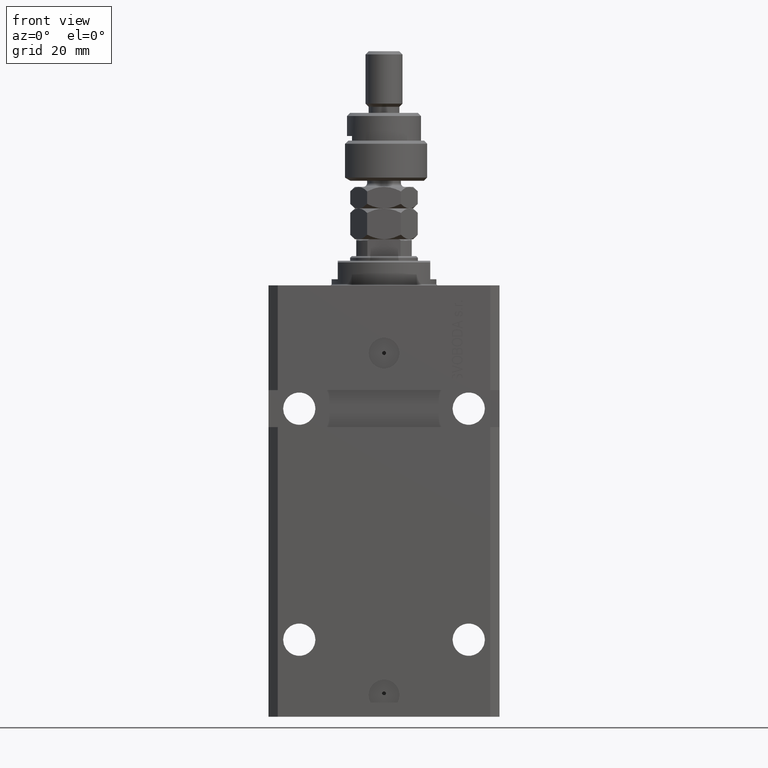
[diagram: clean part render]
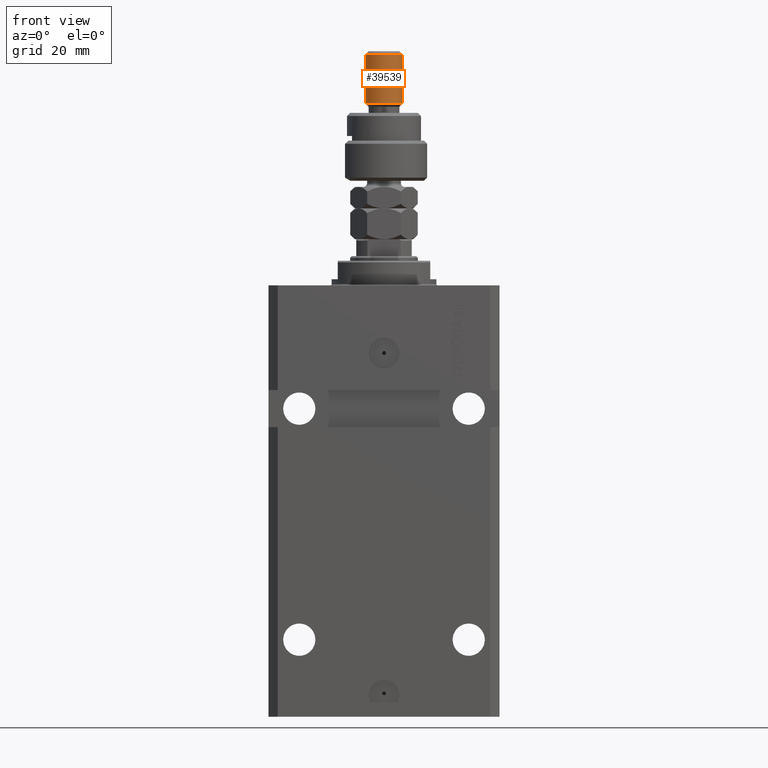
[diagram: same view with one face highlighted and labeled with its STEP entity id]
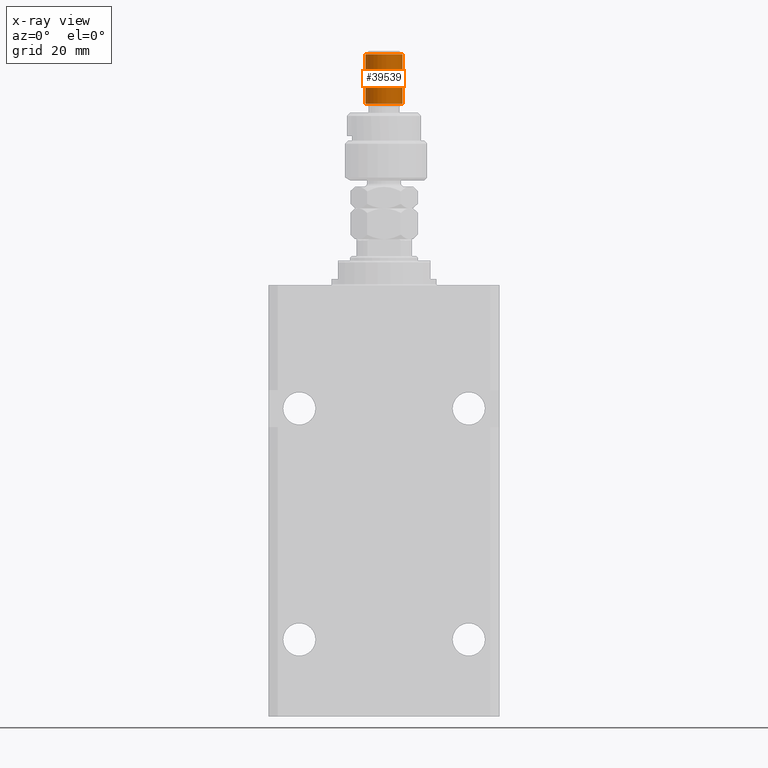
[diagram: x-ray of the same camera — body ghosted, the highlighted face saturated]
A machine part, front view. The second image highlights one B-rep face of the part: STEP entity #39539.
The next image is the same camera in x-ray: the body ghosted, the highlighted face saturated — about 0% of this face is hidden behind the body in this view.
In plain terms, the highlighted cylindrical surface (edge-blend (fillet) strip) has radius 6 mm, axis along (-0, -0, -1).
Its self-contained STEP definition (entity closure, byte-faithful):
#4111 = CYLINDRICAL_SURFACE ( 'NONE', #10540, 6.000000000000000888 ) ;
#4383 = EDGE_CURVE ( 'NONE', #11710, #39743, #48407, .T. ) ;
#4653 = DIRECTION ( 'NONE',  ( 0.000000000000000000, 0.000000000000000000, -1.000000000000000000 ) ) ;
#9547 = ORIENTED_EDGE ( 'NONE', *, *, #49970, .T. ) ;
#10540 = AXIS2_PLACEMENT_3D ( 'NONE', #45981, #38866, #30774 ) ;
#11042 = CARTESIAN_POINT ( 'NONE',  ( -6.000000000000000888, 0.000000000000000000, 40.99999999999997868 ) ) ;
#11710 = VERTEX_POINT ( 'NONE', #15508 ) ;
#12066 = CARTESIAN_POINT ( 'NONE',  ( 0.000000000000000000, 0.000000000000000000, 24.99999999999999645 ) ) ;
#12551 = CARTESIAN_POINT ( 'NONE',  ( -6.000000000000000888, 0.000000000000000000, 24.99999999999999645 ) ) ;
#14947 = ORIENTED_EDGE ( 'NONE', *, *, #32376, .T. ) ;
#15508 = CARTESIAN_POINT ( 'NONE',  ( 6.000000000000000888, 7.347880794884120722E-16, 40.99999999999997868 ) ) ;
#18303 = LINE ( 'NONE', #33276, #31339 ) ;
#19834 = FACE_OUTER_BOUND ( 'NONE', #46879, .T. ) ;
#23698 = VERTEX_POINT ( 'NONE', #12551 ) ;
#25579 = DIRECTION ( 'NONE',  ( -0.000000000000000000, -0.000000000000000000, -1.000000000000000000 ) ) ;
#25717 = VERTEX_POINT ( 'NONE', #11042 ) ;
#27110 = VECTOR ( 'NONE', #25579, 1000.000000000000000 ) ;
#30774 = DIRECTION ( 'NONE',  ( -1.000000000000000000, 0.000000000000000000, 0.000000000000000000 ) ) ;
#31339 = VECTOR ( 'NONE', #45677, 1000.000000000000000 ) ;
#31437 = ORIENTED_EDGE ( 'NONE', *, *, #33322, .T. ) ;
#32376 = EDGE_CURVE ( 'NONE', #25717, #23698, #18303, .T. ) ;
#33276 = CARTESIAN_POINT ( 'NONE',  ( -6.000000000000000888, 0.000000000000000000, 41.99999999999999289 ) ) ;
#33322 = EDGE_CURVE ( 'NONE', #23698, #39743, #47561, .T. ) ;
#35590 = DIRECTION ( 'NONE',  ( 1.000000000000000000, 0.000000000000000000, 0.000000000000000000 ) ) ;
#35887 = DIRECTION ( 'NONE',  ( 1.000000000000000000, 0.000000000000000000, 0.000000000000000000 ) ) ;
#38041 = ORIENTED_EDGE ( 'NONE', *, *, #4383, .F. ) ;
#38650 = CARTESIAN_POINT ( 'NONE',  ( 0.000000000000000000, 0.000000000000000000, 40.99999999999997868 ) ) ;
#38866 = DIRECTION ( 'NONE',  ( -0.000000000000000000, -0.000000000000000000, -1.000000000000000000 ) ) ;
#39539 = ADVANCED_FACE ( 'NONE', ( #19834 ), #4111, .T. ) ;
#39743 = VERTEX_POINT ( 'NONE', #49912 ) ;
#44350 = CARTESIAN_POINT ( 'NONE',  ( 6.000000000000000888, 7.347880794884120722E-16, 41.99999999999999289 ) ) ;
#45342 = AXIS2_PLACEMENT_3D ( 'NONE', #38650, #4653, #35590 ) ;
#45677 = DIRECTION ( 'NONE',  ( -0.000000000000000000, -0.000000000000000000, -1.000000000000000000 ) ) ;
#45981 = CARTESIAN_POINT ( 'NONE',  ( 0.000000000000000000, 0.000000000000000000, 41.99999999999999289 ) ) ;
#46879 = EDGE_LOOP ( 'NONE', ( #38041, #9547, #14947, #31437 ) ) ;
#47560 = DIRECTION ( 'NONE',  ( -0.000000000000000000, -0.000000000000000000, 1.000000000000000000 ) ) ;
#47561 = CIRCLE ( 'NONE', #48364, 6.000000000000000888 ) ;
#48364 = AXIS2_PLACEMENT_3D ( 'NONE', #12066, #47560, #35887 ) ;
#48407 = LINE ( 'NONE', #44350, #27110 ) ;
#49403 = CIRCLE ( 'NONE', #45342, 6.000000000000000888 ) ;
#49912 = CARTESIAN_POINT ( 'NONE',  ( 6.000000000000000888, 7.347880794884120722E-16, 24.99999999999999645 ) ) ;
#49970 = EDGE_CURVE ( 'NONE', #11710, #25717, #49403, .T. ) ;